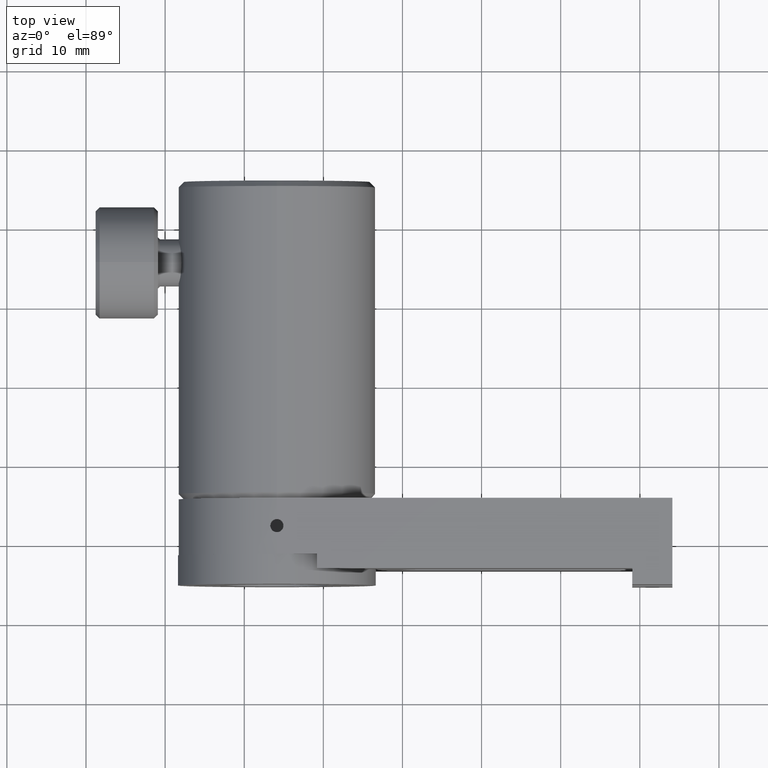
[diagram: clean part render]
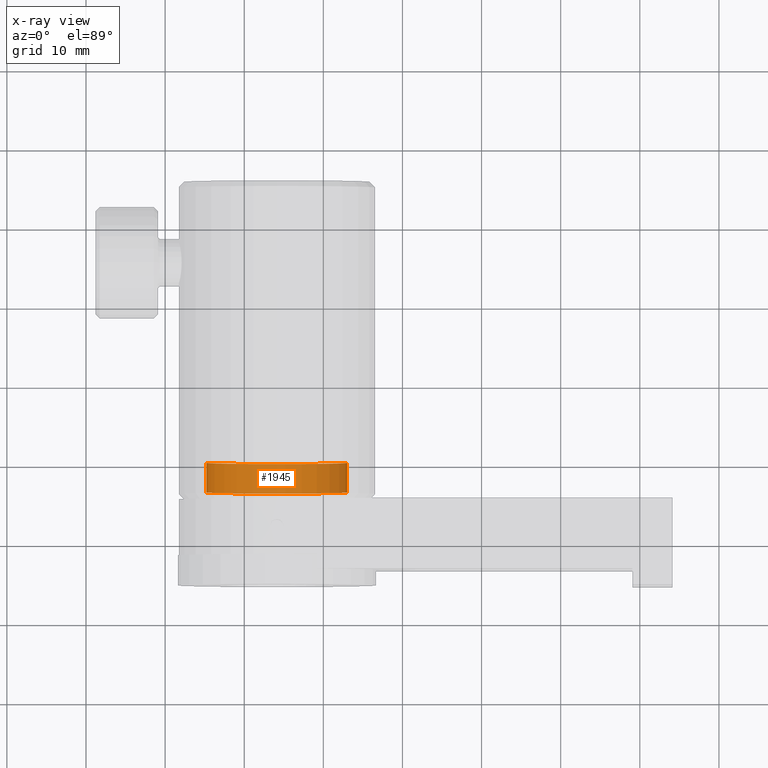
[diagram: x-ray — body ghosted, one internal face saturated and labeled with its STEP entity id]
A machine part, top view, then the same camera in x-ray: the body is ghosted and one INTERNAL B-rep face — a face not visible from any outside direction — is saturated and labeled: STEP entity #1945.
In plain terms, the highlighted cylindrical surface (partial cylindrical patch) has radius 8.89 mm, axis along (0, 1, 0).
Its self-contained STEP definition (entity closure, byte-faithful):
#90 = VECTOR ( 'NONE', #413, 1000.000000000000000 ) ;
#413 = DIRECTION ( 'NONE',  ( 0.0000000000000000000, 1.000000000000000000, 0.0000000000000000000 ) ) ;
#427 = ORIENTED_EDGE ( 'NONE', *, *, #882, .T. ) ;
#447 = DIRECTION ( 'NONE',  ( -1.000000000000000000, 0.0000000000000000000, -3.552366734105304900E-014 ) ) ;
#557 = CARTESIAN_POINT ( 'NONE',  ( 13.01306664389138000, 10.82893478776489400, 4.626108856484553500E-013 ) ) ;
#708 = EDGE_CURVE ( 'NONE', #2662, #1466, #1282, .T. ) ;
#764 = CARTESIAN_POINT ( 'NONE',  ( -4.766933356108617100, 10.32093478776489600, -1.689999196754676700E-013 ) ) ;
#882 = EDGE_CURVE ( 'NONE', #1823, #1817, #3287, .T. ) ;
#946 = EDGE_CURVE ( 'NONE', #2662, #1823, #3370, .T. ) ;
#1052 = DIRECTION ( 'NONE',  ( 0.0000000000000000000, 1.000000000000000000, 0.0000000000000000000 ) ) ;
#1059 = VECTOR ( 'NONE', #2922, 1000.000000000000000 ) ;
#1176 = AXIS2_PLACEMENT_3D ( 'NONE', #1672, #1372, #447 ) ;
#1282 = LINE ( 'NONE', #557, #1059 ) ;
#1347 = DIRECTION ( 'NONE',  ( -1.000000000000000000, 0.0000000000000000000, -3.552366734105304900E-014 ) ) ;
#1372 = DIRECTION ( 'NONE',  ( 0.0000000000000000000, 1.000000000000000000, 0.0000000000000000000 ) ) ;
#1466 = VERTEX_POINT ( 'NONE', #1925 ) ;
#1499 = FACE_OUTER_BOUND ( 'NONE', #3242, .T. ) ;
#1672 = CARTESIAN_POINT ( 'NONE',  ( 4.123066643891380800, 10.32093478776489600, 1.457167719820518700E-013 ) ) ;
#1753 = EDGE_CURVE ( 'NONE', #1466, #1817, #2240, .T. ) ;
#1817 = VERTEX_POINT ( 'NONE', #764 ) ;
#1823 = VERTEX_POINT ( 'NONE', #3102 ) ;
#1925 = CARTESIAN_POINT ( 'NONE',  ( 13.01306664389138000, 10.32093478776489600, 4.615221746440134300E-013 ) ) ;
#1945 = ADVANCED_FACE ( 'NONE', ( #1499 ), #2348, .T. ) ;
#1950 = ORIENTED_EDGE ( 'NONE', *, *, #1753, .F. ) ;
#1993 = DIRECTION ( 'NONE',  ( -1.000000000000000000, 0.0000000000000000000, -3.552366734105304900E-014 ) ) ;
#2166 = AXIS2_PLACEMENT_3D ( 'NONE', #2604, #3177, #1993 ) ;
#2234 = ORIENTED_EDGE ( 'NONE', *, *, #946, .T. ) ;
#2240 = CIRCLE ( 'NONE', #1176, 8.889999999999998800 ) ;
#2242 = CARTESIAN_POINT ( 'NONE',  ( 13.01306664389137800, 6.587134787764891400, 4.626108856484552500E-013 ) ) ;
#2348 = CYLINDRICAL_SURFACE ( 'NONE', #2166, 8.889999999999998800 ) ;
#2480 = CARTESIAN_POINT ( 'NONE',  ( -4.766933356108617100, 10.82893478776489400, -1.700886306799096900E-013 ) ) ;
#2604 = CARTESIAN_POINT ( 'NONE',  ( 4.123066643891380800, 10.82893478776489400, 1.457167719820518700E-013 ) ) ;
#2642 = AXIS2_PLACEMENT_3D ( 'NONE', #2839, #1052, #1347 ) ;
#2662 = VERTEX_POINT ( 'NONE', #2242 ) ;
#2839 = CARTESIAN_POINT ( 'NONE',  ( 4.123066643891380800, 6.587134787764891400, 1.457167719820518700E-013 ) ) ;
#2922 = DIRECTION ( 'NONE',  ( 0.0000000000000000000, 1.000000000000000000, 0.0000000000000000000 ) ) ;
#3102 = CARTESIAN_POINT ( 'NONE',  ( -4.766933356108617100, 6.587134787764891400, -1.700886306799096900E-013 ) ) ;
#3177 = DIRECTION ( 'NONE',  ( 0.0000000000000000000, 1.000000000000000000, 0.0000000000000000000 ) ) ;
#3242 = EDGE_LOOP ( 'NONE', ( #3527, #2234, #427, #1950 ) ) ;
#3287 = LINE ( 'NONE', #2480, #90 ) ;
#3370 = CIRCLE ( 'NONE', #2642, 8.889999999999998800 ) ;
#3527 = ORIENTED_EDGE ( 'NONE', *, *, #708, .F. ) ;